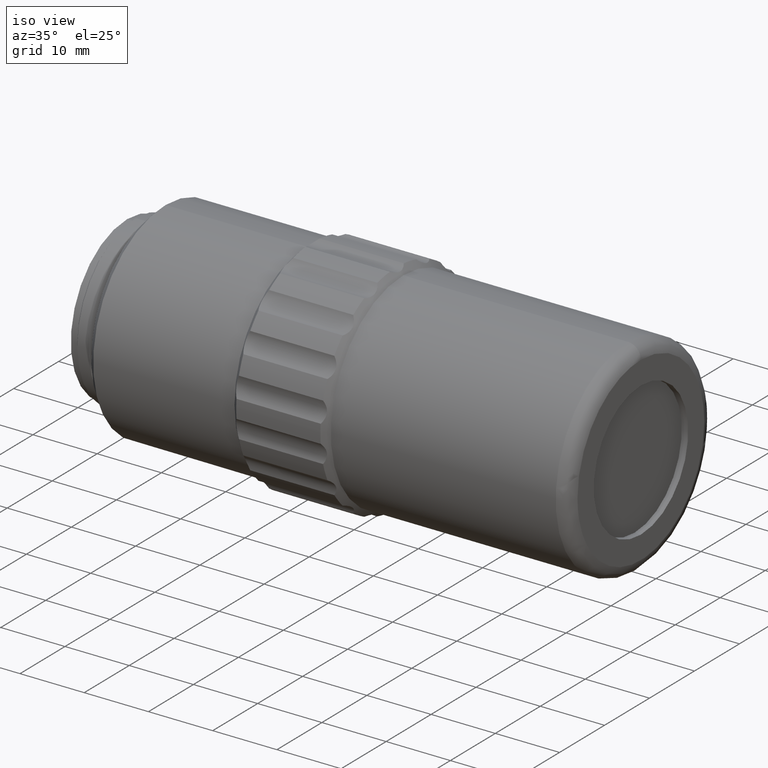
[diagram: clean part render]
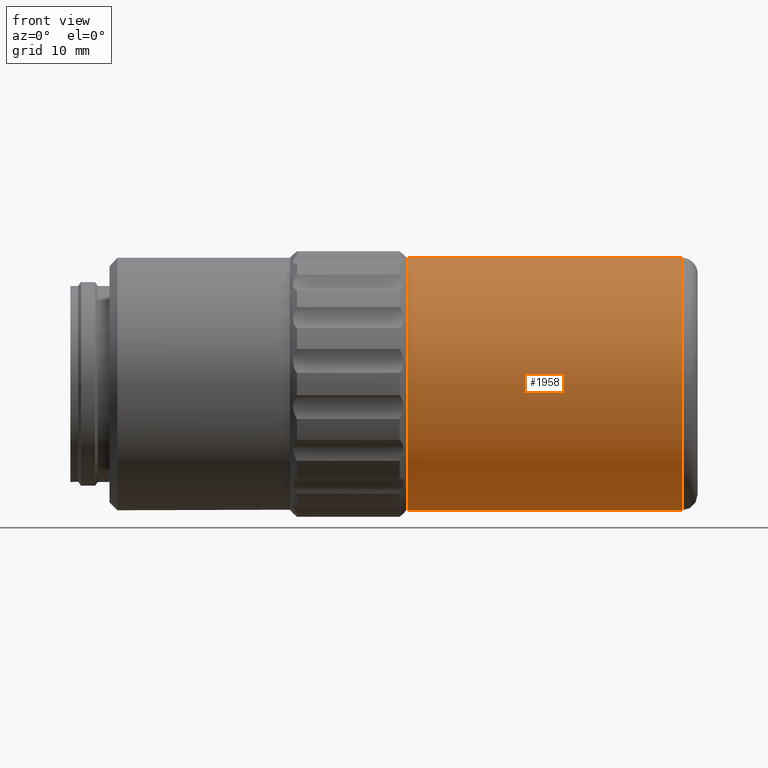
[diagram: tour spotlight — one face highlighted and labeled with its STEP entity id]
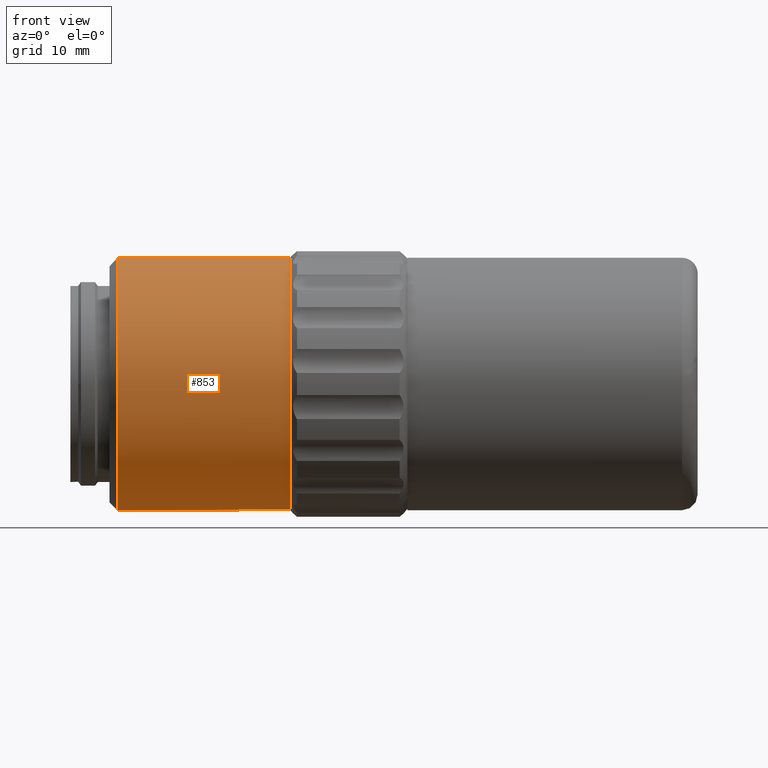
[diagram: tour spotlight — one face highlighted and labeled with its STEP entity id]
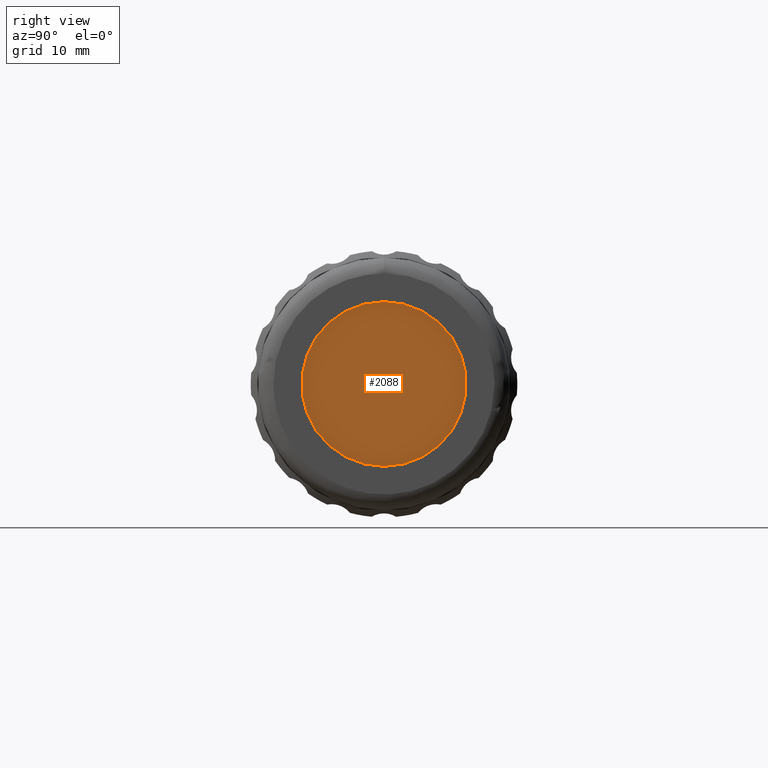
[diagram: tour spotlight — one face highlighted and labeled with its STEP entity id]
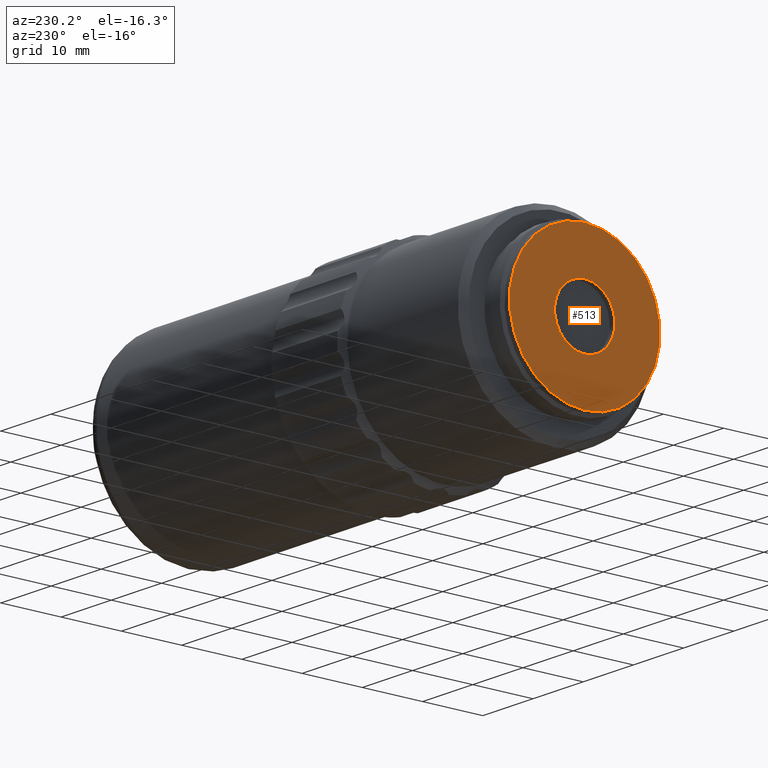
[diagram: tour spotlight — one face highlighted and labeled with its STEP entity id]
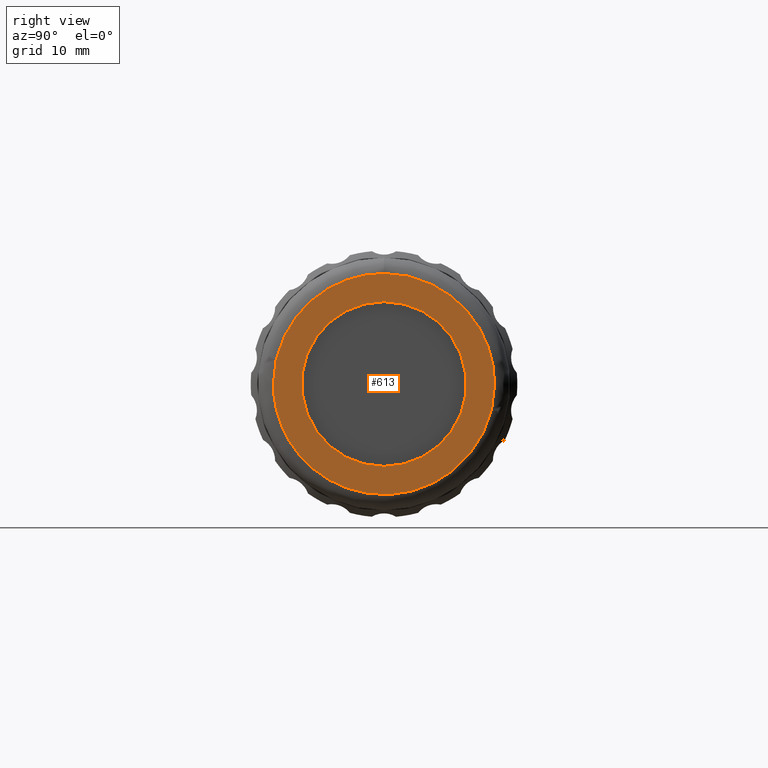
[diagram: tour spotlight — one face highlighted and labeled with its STEP entity id]
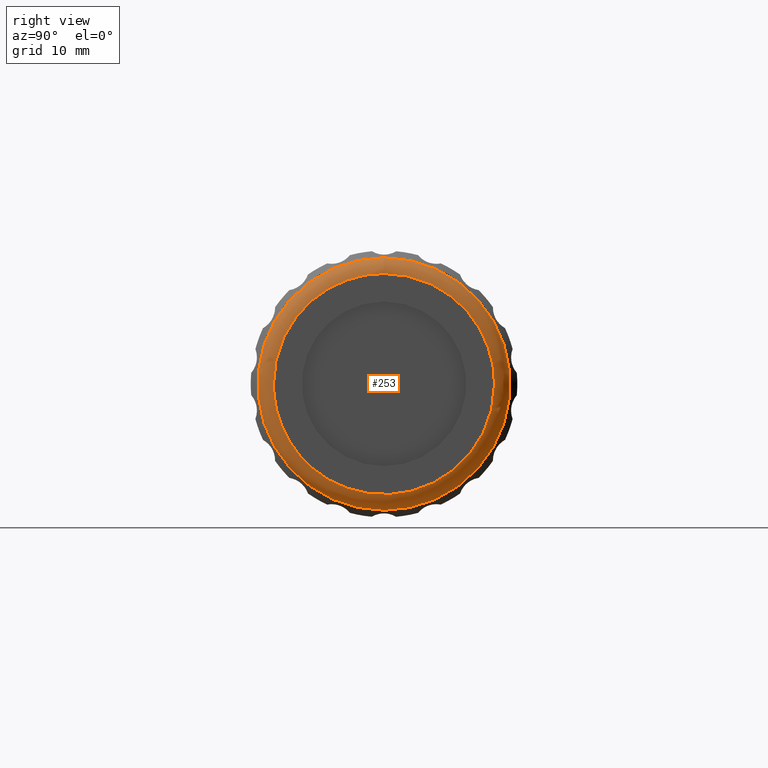
[diagram: tour spotlight — one face highlighted and labeled with its STEP entity id]
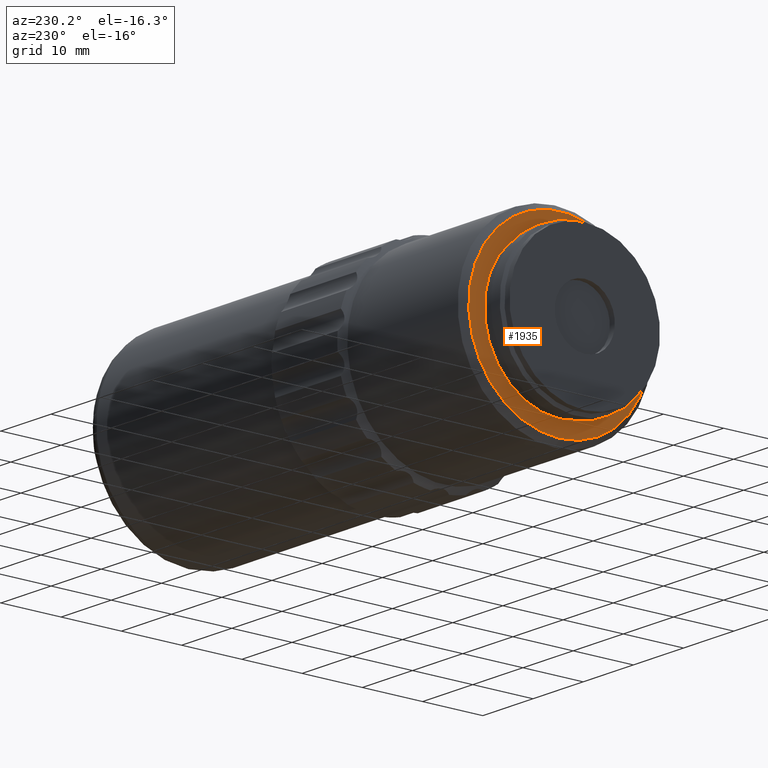
[diagram: tour spotlight — one face highlighted and labeled with its STEP entity id]
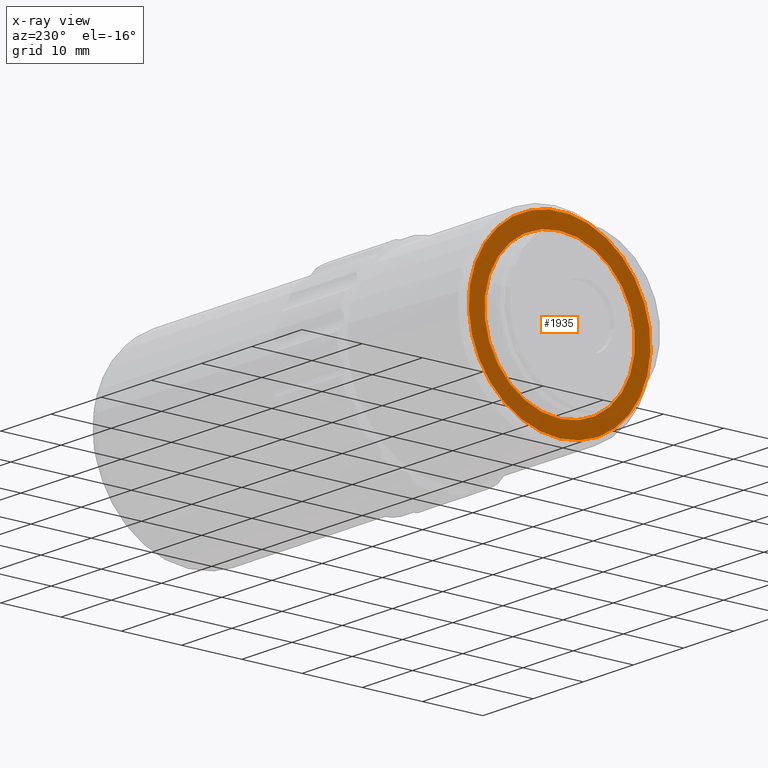
[diagram: x-ray of the same camera — body ghosted, this tour face saturated]
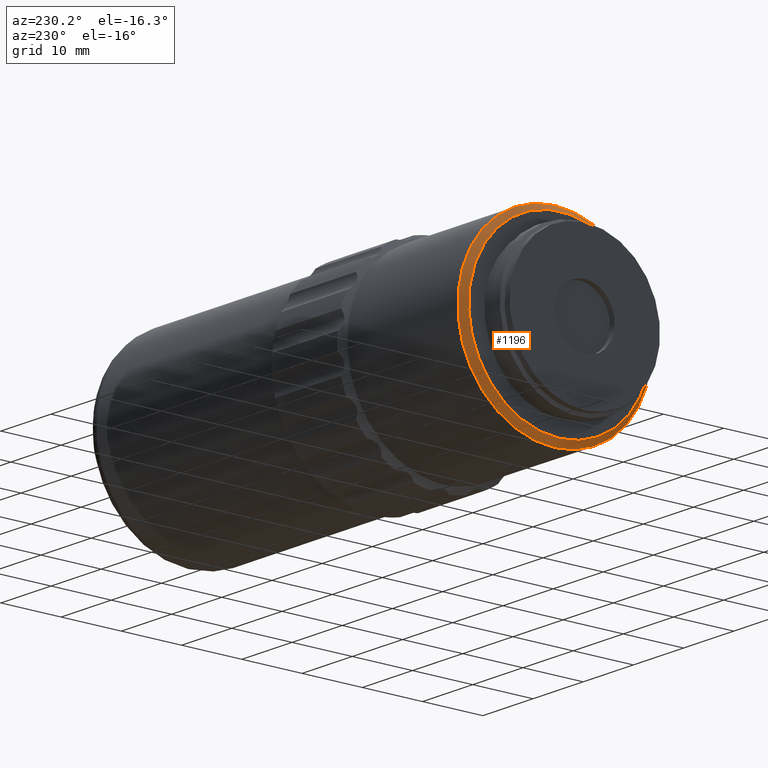
[diagram: tour spotlight — one face highlighted and labeled with its STEP entity id]
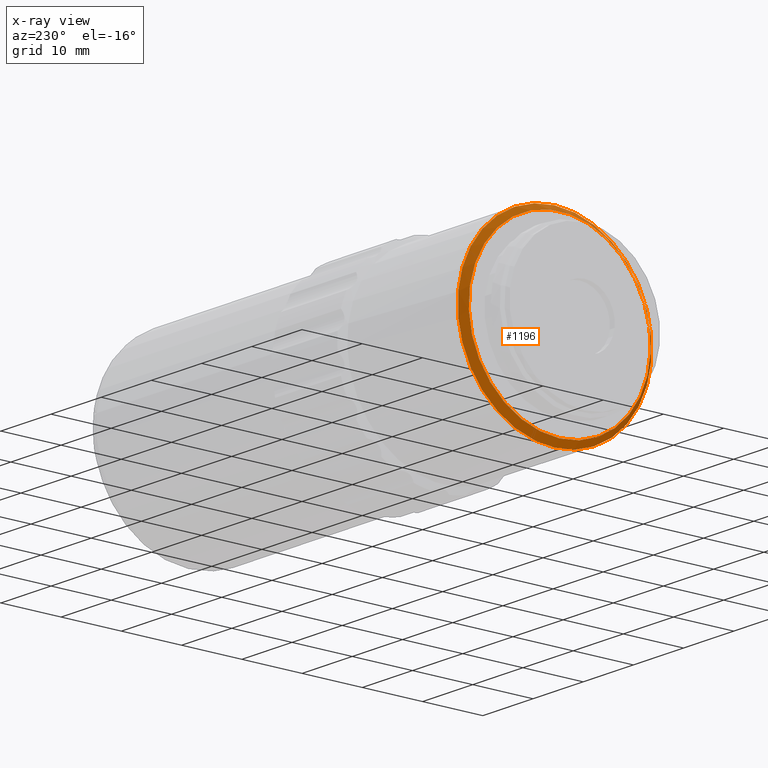
[diagram: x-ray of the same camera — body ghosted, this tour face saturated]
A machine part: a face-by-face anatomy tour. The part has 55 B-rep faces; the first image is the clean iso view, then the 8 largest visible faces are spotlighted one at a time (largest first), each with its STEP entity span.

Face 1 — front view, entity #1958. In plain terms, the highlighted cylindrical surface (bore or boss wall) has radius 16.1 mm, axis along (-1, 0, 0).
Definition (entity closure, byte-faithful):
#20 = ORIENTED_EDGE ( 'NONE', *, *, #371, .T. ) ;
#49 = DIRECTION ( 'NONE',  ( 0.000000000000000000, 0.000000000000000000, 1.000000000000000000 ) ) ;
#54 = CIRCLE ( 'NONE', #1962, 16.10000000000000142 ) ;
#118 = CIRCLE ( 'NONE', #978, 16.10000000000000142 ) ;
#371 = EDGE_CURVE ( 'NONE', #1034, #1034, #54, .T. ) ;
#381 = DIRECTION ( 'NONE',  ( 1.000000000000000000, -0.000000000000000000, -0.000000000000000000 ) ) ;
#407 = EDGE_CURVE ( 'NONE', #2024, #2024, #118, .T. ) ;
#451 = CYLINDRICAL_SURFACE ( 'NONE', #1861, 16.10000000000000142 ) ;
#462 = EDGE_LOOP ( 'NONE', ( #20 ) ) ;
#515 = ORIENTED_EDGE ( 'NONE', *, *, #407, .T. ) ;
#534 = DIRECTION ( 'NONE',  ( 0.000000000000000000, 0.000000000000000000, 1.000000000000000000 ) ) ;
#541 = DIRECTION ( 'NONE',  ( 0.000000000000000000, 0.000000000000000000, 1.000000000000000000 ) ) ;
#759 = CARTESIAN_POINT ( 'NONE',  ( 44.14685803487879667, 46.02096199999999726, 0.000000000000000000 ) ) ;
#852 = CARTESIAN_POINT ( 'NONE',  ( 33.44685803487879383, 46.02096199999999726, 0.000000000000000000 ) ) ;
#894 = CARTESIAN_POINT ( 'NONE',  ( 68.44685803487878673, 46.02096199999999726, 16.10000000000000142 ) ) ;
#927 = EDGE_LOOP ( 'NONE', ( #515 ) ) ;
#978 = AXIS2_PLACEMENT_3D ( 'NONE', #1990, #1174, #534 ) ;
#1034 = VERTEX_POINT ( 'NONE', #1525 ) ;
#1174 = DIRECTION ( 'NONE',  ( -1.000000000000000000, 0.000000000000000000, 0.000000000000000000 ) ) ;
#1525 = CARTESIAN_POINT ( 'NONE',  ( 33.44685803487879383, 46.02096199999999726, 16.10000000000000142 ) ) ;
#1749 = DIRECTION ( 'NONE',  ( -1.000000000000000000, 0.000000000000000000, 0.000000000000000000 ) ) ;
#1861 = AXIS2_PLACEMENT_3D ( 'NONE', #759, #1749, #541 ) ;
#1910 = FACE_OUTER_BOUND ( 'NONE', #462, .T. ) ;
#1958 = ADVANCED_FACE ( 'NONE', ( #2100, #1910 ), #451, .T. ) ;
#1962 = AXIS2_PLACEMENT_3D ( 'NONE', #852, #381, #49 ) ;
#1990 = CARTESIAN_POINT ( 'NONE',  ( 68.44685803487878673, 46.02096199999999726, 0.000000000000000000 ) ) ;
#2024 = VERTEX_POINT ( 'NONE', #894 ) ;
#2100 = FACE_OUTER_BOUND ( 'NONE', #927, .T. ) ;

Face 2 — front view, entity #853. In plain terms, the highlighted cylindrical surface (bore or boss wall) has radius 16.1 mm, axis along (-1, 0, 0).
Definition (entity closure, byte-faithful):
#33 = CARTESIAN_POINT ( 'NONE',  ( 18.44685803487879738, 46.02096199999999726, 0.000000000000000000 ) ) ;
#103 = AXIS2_PLACEMENT_3D ( 'NONE', #816, #1606, #662 ) ;
#186 = DIRECTION ( 'NONE',  ( 1.000000000000000000, 0.000000000000000000, 0.000000000000000000 ) ) ;
#306 = EDGE_LOOP ( 'NONE', ( #627 ) ) ;
#363 = CIRCLE ( 'NONE', #2093, 16.10000000000000142 ) ;
#537 = EDGE_LOOP ( 'NONE', ( #1096 ) ) ;
#598 = AXIS2_PLACEMENT_3D ( 'NONE', #1936, #1913, #1085 ) ;
#627 = ORIENTED_EDGE ( 'NONE', *, *, #1579, .T. ) ;
#629 = FACE_OUTER_BOUND ( 'NONE', #537, .T. ) ;
#662 = DIRECTION ( 'NONE',  ( 0.000000000000000000, 0.000000000000000000, 1.000000000000000000 ) ) ;
#816 = CARTESIAN_POINT ( 'NONE',  ( 6.946858034878798271, 46.02096199999999726, 0.000000000000000000 ) ) ;
#853 = ADVANCED_FACE ( 'NONE', ( #1121, #629 ), #988, .T. ) ;
#988 = CYLINDRICAL_SURFACE ( 'NONE', #103, 16.10000000000000142 ) ;
#1085 = DIRECTION ( 'NONE',  ( 0.000000000000000000, 0.000000000000000000, 1.000000000000000000 ) ) ;
#1096 = ORIENTED_EDGE ( 'NONE', *, *, #2005, .F. ) ;
#1121 = FACE_OUTER_BOUND ( 'NONE', #306, .T. ) ;
#1202 = CARTESIAN_POINT ( 'NONE',  ( 18.44685803487879738, 29.92096199999999584, 0.000000000000000000 ) ) ;
#1226 = VERTEX_POINT ( 'NONE', #1202 ) ;
#1363 = VERTEX_POINT ( 'NONE', #1689 ) ;
#1411 = CIRCLE ( 'NONE', #598, 16.10000000000000142 ) ;
#1579 = EDGE_CURVE ( 'NONE', #1363, #1363, #1411, .T. ) ;
#1606 = DIRECTION ( 'NONE',  ( -1.000000000000000000, 0.000000000000000000, 0.000000000000000000 ) ) ;
#1689 = CARTESIAN_POINT ( 'NONE',  ( -3.553141965121202617, 46.02096199999999726, 16.10000000000000142 ) ) ;
#1913 = DIRECTION ( 'NONE',  ( 1.000000000000000000, -0.000000000000000000, -0.000000000000000000 ) ) ;
#1936 = CARTESIAN_POINT ( 'NONE',  ( -3.553141965121202617, 46.02096199999999726, 0.000000000000000000 ) ) ;
#2005 = EDGE_CURVE ( 'NONE', #1226, #1226, #363, .T. ) ;
#2093 = AXIS2_PLACEMENT_3D ( 'NONE', #33, #186, #2109 ) ;
#2109 = DIRECTION ( 'NONE',  ( 0.000000000000000000, -1.000000000000000000, 0.000000000000000000 ) ) ;

Face 3 — right view, entity #2088. In plain terms, the highlighted planar face has unit normal (1, 0, 0).
Definition (entity closure, byte-faithful):
#351 = AXIS2_PLACEMENT_3D ( 'NONE', #516, #2015, #1010 ) ;
#396 = DIRECTION ( 'NONE',  ( 1.000000000000000000, 0.000000000000000000, 0.000000000000000000 ) ) ;
#516 = CARTESIAN_POINT ( 'NONE',  ( 69.44685803487880094, 46.02096199999999726, 4.350675744370770171E-31 ) ) ;
#711 = VERTEX_POINT ( 'NONE', #1210 ) ;
#746 = DIRECTION ( 'NONE',  ( 0.000000000000000000, 0.000000000000000000, -1.000000000000000000 ) ) ;
#753 = CIRCLE ( 'NONE', #351, 10.50000000000000000 ) ;
#859 = AXIS2_PLACEMENT_3D ( 'NONE', #1513, #396, #746 ) ;
#942 = EDGE_CURVE ( 'NONE', #711, #711, #753, .T. ) ;
#959 = ORIENTED_EDGE ( 'NONE', *, *, #942, .T. ) ;
#1010 = DIRECTION ( 'NONE',  ( 0.000000000000000000, 0.000000000000000000, -1.000000000000000000 ) ) ;
#1131 = EDGE_LOOP ( 'NONE', ( #959 ) ) ;
#1210 = CARTESIAN_POINT ( 'NONE',  ( 69.44685803487880094, 46.02096199999999726, -10.50000000000000000 ) ) ;
#1380 = FACE_OUTER_BOUND ( 'NONE', #1131, .T. ) ;
#1513 = CARTESIAN_POINT ( 'NONE',  ( 69.44685803487880094, 46.02096199999999726, 0.000000000000000000 ) ) ;
#2015 = DIRECTION ( 'NONE',  ( 1.000000000000000000, 0.000000000000000000, 0.000000000000000000 ) ) ;
#2041 = PLANE ( 'NONE',  #859 ) ;
#2088 = ADVANCED_FACE ( 'NONE', ( #1380 ), #2041, .T. ) ;

Face 4 — auxiliary view, entity #513. In plain terms, the highlighted planar face has unit normal (-1, 0, 0).
Definition (entity closure, byte-faithful):
#161 = AXIS2_PLACEMENT_3D ( 'NONE', #1134, #1586, #1457 ) ;
#165 = DIRECTION ( 'NONE',  ( 0.000000000000000000, 0.000000000000000000, 1.000000000000000000 ) ) ;
#238 = CIRCLE ( 'NONE', #612, 12.50000000000000000 ) ;
#320 = DIRECTION ( 'NONE',  ( -1.000000000000000000, 0.000000000000000000, 0.000000000000000000 ) ) ;
#483 = EDGE_LOOP ( 'NONE', ( #615 ) ) ;
#513 = ADVANCED_FACE ( 'NONE', ( #1305, #993 ), #1483, .T. ) ;
#568 = DIRECTION ( 'NONE',  ( 0.000000000000000000, 0.000000000000000000, 1.000000000000000000 ) ) ;
#569 = VERTEX_POINT ( 'NONE', #1219 ) ;
#576 = VERTEX_POINT ( 'NONE', #1678 ) ;
#612 = AXIS2_PLACEMENT_3D ( 'NONE', #1533, #1708, #568 ) ;
#615 = ORIENTED_EDGE ( 'NONE', *, *, #1138, .T. ) ;
#706 = AXIS2_PLACEMENT_3D ( 'NONE', #1026, #320, #165 ) ;
#880 = ORIENTED_EDGE ( 'NONE', *, *, #1378, .F. ) ;
#993 = FACE_OUTER_BOUND ( 'NONE', #1166, .T. ) ;
#1026 = CARTESIAN_POINT ( 'NONE',  ( -9.553141965121202617, 57.87096199999999868, 0.000000000000000000 ) ) ;
#1134 = CARTESIAN_POINT ( 'NONE',  ( -9.553141965121202617, 46.02096199999999726, 0.000000000000000000 ) ) ;
#1138 = EDGE_CURVE ( 'NONE', #569, #569, #1248, .T. ) ;
#1166 = EDGE_LOOP ( 'NONE', ( #880 ) ) ;
#1219 = CARTESIAN_POINT ( 'NONE',  ( -9.553141965121202617, 46.02096199999999726, 5.000000000000000000 ) ) ;
#1248 = CIRCLE ( 'NONE', #161, 5.000000000000000000 ) ;
#1305 = FACE_BOUND ( 'NONE', #483, .T. ) ;
#1378 = EDGE_CURVE ( 'NONE', #576, #576, #238, .T. ) ;
#1457 = DIRECTION ( 'NONE',  ( 0.000000000000000000, 0.000000000000000000, 1.000000000000000000 ) ) ;
#1483 = PLANE ( 'NONE',  #706 ) ;
#1533 = CARTESIAN_POINT ( 'NONE',  ( -9.553141965121202617, 46.02096199999999726, 0.000000000000000000 ) ) ;
#1586 = DIRECTION ( 'NONE',  ( 1.000000000000000000, -0.000000000000000000, -0.000000000000000000 ) ) ;
#1678 = CARTESIAN_POINT ( 'NONE',  ( -9.553141965121202617, 46.02096199999999726, 12.50000000000000000 ) ) ;
#1708 = DIRECTION ( 'NONE',  ( 1.000000000000000000, -0.000000000000000000, -0.000000000000000000 ) ) ;

Face 5 — right view, entity #613. In plain terms, the highlighted planar face has unit normal (1, 0, 0).
Definition (entity closure, byte-faithful):
#60 = AXIS2_PLACEMENT_3D ( 'NONE', #1185, #1486, #1496 ) ;
#71 = CARTESIAN_POINT ( 'NONE',  ( 70.44685803487880094, 37.76137322946063790, 14.09999999999999964 ) ) ;
#94 = CARTESIAN_POINT ( 'NONE',  ( 70.44685803487880094, 31.92096199999999584, -1.036051192078660836E-15 ) ) ;
#105 = AXIS2_PLACEMENT_3D ( 'NONE', #1035, #390, #218 ) ;
#197 = CARTESIAN_POINT ( 'NONE',  ( 70.44685803487880094, 31.92096199999999584, -28.19999999999999929 ) ) ;
#218 = DIRECTION ( 'NONE',  ( 0.000000000000000000, 0.000000000000000000, -1.000000000000000000 ) ) ;
#228 = PLANE ( 'NONE',  #105 ) ;
#283 = ORIENTED_EDGE ( 'NONE', *, *, #1715, .F. ) ;
#327 = CIRCLE ( 'NONE', #60, 10.50000000000000000 ) ;
#390 = DIRECTION ( 'NONE',  ( 1.000000000000000000, 0.000000000000000000, 0.000000000000000000 ) ) ;
#497 = CARTESIAN_POINT ( 'NONE',  ( 70.44685803487880094, 31.92096199999999584, -1.036051192078660836E-15 ) ) ;
#524 = CARTESIAN_POINT ( 'NONE',  ( 70.44685803487880094, 31.92096199999999584, -1.036051192078660836E-15 ) ) ;
#530 = EDGE_CURVE ( 'NONE', #1745, #2099, #1918, .T. ) ;
#543 = EDGE_CURVE ( 'NONE', #1932, #1745, #1262, .T. ) ;
#571 = CARTESIAN_POINT ( 'NONE',  ( 70.44685803487880094, 60.12096199999999868, 8.259588770539359359 ) ) ;
#613 = ADVANCED_FACE ( 'NONE', ( #1382, #2027 ), #228, .T. ) ;
#640 = ORIENTED_EDGE ( 'NONE', *, *, #543, .F. ) ;
#722 = CARTESIAN_POINT ( 'NONE',  ( 70.44685803487880094, 54.28055077053935662, 14.09999999999999964 ) ) ;
#857 = ORIENTED_EDGE ( 'NONE', *, *, #530, .F. ) ;
#893 =( BOUNDED_CURVE ( )  B_SPLINE_CURVE ( 3, ( #524, #1017, #71, #1205 ),
 .UNSPECIFIED., .F., .T. ) 
 B_SPLINE_CURVE_WITH_KNOTS ( ( 4, 4 ),
 ( 0.000000000000000000, 1.000000000000000000 ),
 .UNSPECIFIED. ) 
 CURVE ( )  GEOMETRIC_REPRESENTATION_ITEM ( )  RATIONAL_B_SPLINE_CURVE ( ( 1.000000000000000000, 0.8047378541243649375, 0.8047378541243649375, 1.000000000000000000 ) ) 
 REPRESENTATION_ITEM ( '' )  );
#1015 = CARTESIAN_POINT ( 'NONE',  ( 70.44685803487880094, 46.02096199999999726, 14.10000000000000142 ) ) ;
#1017 = CARTESIAN_POINT ( 'NONE',  ( 70.44685803487880094, 31.92096199999999584, 8.259588770539357583 ) ) ;
#1035 = CARTESIAN_POINT ( 'NONE',  ( 70.44685803487880094, 46.02096199999999726, 14.44999999999999929 ) ) ;
#1102 = CARTESIAN_POINT ( 'NONE',  ( 70.44685803487880094, 46.02096199999999726, 14.10000000000000142 ) ) ;
#1171 = EDGE_LOOP ( 'NONE', ( #1604 ) ) ;
#1185 = CARTESIAN_POINT ( 'NONE',  ( 70.44685803487880094, 46.02096199999999726, 4.350675744370770171E-31 ) ) ;
#1194 = CARTESIAN_POINT ( 'NONE',  ( 70.44685803487880094, 60.12096199999999868, 0.000000000000000000 ) ) ;
#1205 = CARTESIAN_POINT ( 'NONE',  ( 70.44685803487880094, 46.02096199999999726, 14.10000000000000142 ) ) ;
#1262 =( BOUNDED_CURVE ( )  B_SPLINE_CURVE ( 3, ( #1015, #722, #571, #1194 ),
 .UNSPECIFIED., .F., .T. ) 
 B_SPLINE_CURVE_WITH_KNOTS ( ( 4, 4 ),
 ( 0.000000000000000000, 1.000000000000000000 ),
 .UNSPECIFIED. ) 
 CURVE ( )  GEOMETRIC_REPRESENTATION_ITEM ( )  RATIONAL_B_SPLINE_CURVE ( ( 1.000000000000000000, 0.8047378541243649375, 0.8047378541243649375, 1.000000000000000000 ) ) 
 REPRESENTATION_ITEM ( '' )  );
#1382 = FACE_BOUND ( 'NONE', #1171, .T. ) ;
#1486 = DIRECTION ( 'NONE',  ( -1.000000000000000000, -0.000000000000000000, -0.000000000000000000 ) ) ;
#1496 = DIRECTION ( 'NONE',  ( 0.000000000000000000, 0.000000000000000000, -1.000000000000000000 ) ) ;
#1505 = CARTESIAN_POINT ( 'NONE',  ( 70.44685803487880094, 60.12096199999999868, 0.000000000000000000 ) ) ;
#1543 = CARTESIAN_POINT ( 'NONE',  ( 70.44685803487880094, 46.02096199999999726, -10.50000000000000000 ) ) ;
#1547 = CARTESIAN_POINT ( 'NONE',  ( 70.44685803487880094, 60.12096199999999868, 0.000000000000000000 ) ) ;
#1604 = ORIENTED_EDGE ( 'NONE', *, *, #1680, .T. ) ;
#1650 = CARTESIAN_POINT ( 'NONE',  ( 70.44685803487880094, 60.12096200000000579, -28.19999999999999929 ) ) ;
#1680 = EDGE_CURVE ( 'NONE', #2009, #2009, #327, .T. ) ;
#1715 = EDGE_CURVE ( 'NONE', #2099, #1932, #893, .T. ) ;
#1745 = VERTEX_POINT ( 'NONE', #1547 ) ;
#1812 = EDGE_LOOP ( 'NONE', ( #857, #640, #283 ) ) ;
#1918 =( BOUNDED_CURVE ( )  B_SPLINE_CURVE ( 3, ( #1505, #1650, #197, #497 ),
 .UNSPECIFIED., .F., .F. ) 
 B_SPLINE_CURVE_WITH_KNOTS ( ( 4, 4 ),
 ( 0.000000000000000000, 1.000000000000000000 ),
 .UNSPECIFIED. ) 
 CURVE ( )  GEOMETRIC_REPRESENTATION_ITEM ( )  RATIONAL_B_SPLINE_CURVE ( ( 1.000000000000000000, 0.3333333333333333703, 0.3333333333333333703, 1.000000000000000000 ) ) 
 REPRESENTATION_ITEM ( '' )  );
#1932 = VERTEX_POINT ( 'NONE', #1102 ) ;
#2009 = VERTEX_POINT ( 'NONE', #1543 ) ;
#2027 = FACE_OUTER_BOUND ( 'NONE', #1812, .T. ) ;
#2099 = VERTEX_POINT ( 'NONE', #94 ) ;

Face 6 — right view, entity #253. In plain terms, the highlighted face is a freeform B-spline surface patch.
Definition (entity closure, byte-faithful):
#2 = CARTESIAN_POINT ( 'NONE',  ( 69.61843091013260221, 29.92096199999999939, 0.000000000000000000 ) ) ;
#71 = CARTESIAN_POINT ( 'NONE',  ( 70.44685803487880094, 37.76137322946063790, 14.09999999999999964 ) ) ;
#94 = CARTESIAN_POINT ( 'NONE',  ( 70.44685803487880094, 31.92096199999999584, -1.036051192078660836E-15 ) ) ;
#118 = CIRCLE ( 'NONE', #978, 16.10000000000000142 ) ;
#130 = CARTESIAN_POINT ( 'NONE',  ( 68.44685803487880094, 29.92096199999999584, -32.20000000000000284 ) ) ;
#142 = CARTESIAN_POINT ( 'NONE',  ( 70.44685803487880094, 30.74938912474618391, 0.000000000000000000 ) ) ;
#182 = EDGE_LOOP ( 'NONE', ( #1275, #815, #1419 ) ) ;
#197 = CARTESIAN_POINT ( 'NONE',  ( 70.44685803487880094, 31.92096199999999584, -28.19999999999999929 ) ) ;
#253 = ADVANCED_FACE ( 'NONE', ( #1406, #600 ), #683, .T. ) ;
#300 = CARTESIAN_POINT ( 'NONE',  ( 69.61843091013260221, 29.92096199999999584, 32.20000000000000284 ) ) ;
#310 = CARTESIAN_POINT ( 'NONE',  ( 70.44685803487880094, 60.12096199999999868, -28.20000000000000284 ) ) ;
#321 = CARTESIAN_POINT ( 'NONE',  ( 70.44685803487880094, 31.92096199999999229, -28.20000000000000284 ) ) ;
#407 = EDGE_CURVE ( 'NONE', #2024, #2024, #118, .T. ) ;
#464 = CARTESIAN_POINT ( 'NONE',  ( 68.44685803487878673, 62.12096199999999868, 0.000000000000000000 ) ) ;
#487 = CARTESIAN_POINT ( 'NONE',  ( 70.44685803487880094, 31.92096199999999229, 28.20000000000000284 ) ) ;
#497 = CARTESIAN_POINT ( 'NONE',  ( 70.44685803487880094, 31.92096199999999584, -1.036051192078660836E-15 ) ) ;
#524 = CARTESIAN_POINT ( 'NONE',  ( 70.44685803487880094, 31.92096199999999584, -1.036051192078660836E-15 ) ) ;
#530 = EDGE_CURVE ( 'NONE', #1745, #2099, #1918, .T. ) ;
#534 = DIRECTION ( 'NONE',  ( 0.000000000000000000, 0.000000000000000000, 1.000000000000000000 ) ) ;
#543 = EDGE_CURVE ( 'NONE', #1932, #1745, #1262, .T. ) ;
#571 = CARTESIAN_POINT ( 'NONE',  ( 70.44685803487880094, 60.12096199999999868, 8.259588770539359359 ) ) ;
#600 = FACE_OUTER_BOUND ( 'NONE', #798, .T. ) ;
#611 = CARTESIAN_POINT ( 'NONE',  ( 68.44685803487880094, 62.12096200000000579, -32.20000000000000284 ) ) ;
#623 = CARTESIAN_POINT ( 'NONE',  ( 68.44685803487880094, 29.92096199999999584, 32.20000000000000284 ) ) ;
#634 = CARTESIAN_POINT ( 'NONE',  ( 70.44685803487880094, 61.29253487525379995, 0.000000000000000000 ) ) ;
#658 = CARTESIAN_POINT ( 'NONE',  ( 70.44685803487880094, 60.12096199999999868, 0.000000000000000000 ) ) ;
#680 = CARTESIAN_POINT ( 'NONE',  ( 70.44685803487880094, 30.74938912474619102, -30.54314575050762315 ) ) ;
#683 =( BOUNDED_SURFACE ( )  B_SPLINE_SURFACE ( 3, 3, ( 
 ( #1094, #611, #130, #783, #623, #1924, #464 ),
 ( #1114, #1809, #1461, #2, #300, #995, #2089 ),
 ( #634, #1982, #680, #142, #981, #1641, #842 ),
 ( #658, #310, #321, #1283, #487, #1612, #1629 ) ),
 .UNSPECIFIED., .F., .T., .T. ) 
 B_SPLINE_SURFACE_WITH_KNOTS ( ( 4, 4 ),
 ( 4, 3, 4 ),
 ( 0.000000000000000000, 1.000000000000000000 ),
 ( 0.000000000000000000, 0.5000000000000000000, 1.000000000000000000 ),
 .UNSPECIFIED. ) 
 GEOMETRIC_REPRESENTATION_ITEM ( )  RATIONAL_B_SPLINE_SURFACE ( (
 ( 1.000000000000000000, 0.3333333333333333148, 0.3333333333333333148, 1.000000000000000000, 0.3333333333333333148, 0.3333333333333333148, 1.000000000000000000),
 ( 0.8047378541243649375, 0.2682459513747882940, 0.2682459513747882940, 0.8047378541243649375, 0.2682459513747882940, 0.2682459513747882940, 0.8047378541243649375),
 ( 0.8047378541243649375, 0.2682459513747882940, 0.2682459513747882940, 0.8047378541243649375, 0.2682459513747882940, 0.2682459513747882940, 0.8047378541243649375),
 ( 1.000000000000000000, 0.3333333333333333148, 0.3333333333333333148, 1.000000000000000000, 0.3333333333333333148, 0.3333333333333333148, 1.000000000000000000) ) ) 
 REPRESENTATION_ITEM ( '' )  SURFACE ( )  );
#722 = CARTESIAN_POINT ( 'NONE',  ( 70.44685803487880094, 54.28055077053935662, 14.09999999999999964 ) ) ;
#783 = CARTESIAN_POINT ( 'NONE',  ( 68.44685803487878673, 29.92096199999999584, 0.000000000000000000 ) ) ;
#798 = EDGE_LOOP ( 'NONE', ( #1811 ) ) ;
#815 = ORIENTED_EDGE ( 'NONE', *, *, #530, .T. ) ;
#842 = CARTESIAN_POINT ( 'NONE',  ( 70.44685803487880094, 61.29253487525379995, 0.000000000000000000 ) ) ;
#893 =( BOUNDED_CURVE ( )  B_SPLINE_CURVE ( 3, ( #524, #1017, #71, #1205 ),
 .UNSPECIFIED., .F., .T. ) 
 B_SPLINE_CURVE_WITH_KNOTS ( ( 4, 4 ),
 ( 0.000000000000000000, 1.000000000000000000 ),
 .UNSPECIFIED. ) 
 CURVE ( )  GEOMETRIC_REPRESENTATION_ITEM ( )  RATIONAL_B_SPLINE_CURVE ( ( 1.000000000000000000, 0.8047378541243649375, 0.8047378541243649375, 1.000000000000000000 ) ) 
 REPRESENTATION_ITEM ( '' )  );
#894 = CARTESIAN_POINT ( 'NONE',  ( 68.44685803487878673, 46.02096199999999726, 16.10000000000000142 ) ) ;
#978 = AXIS2_PLACEMENT_3D ( 'NONE', #1990, #1174, #534 ) ;
#981 = CARTESIAN_POINT ( 'NONE',  ( 70.44685803487880094, 30.74938912474618391, 30.54314575050763025 ) ) ;
#995 = CARTESIAN_POINT ( 'NONE',  ( 69.61843091013260221, 62.12096199999999868, 32.20000000000000284 ) ) ;
#1015 = CARTESIAN_POINT ( 'NONE',  ( 70.44685803487880094, 46.02096199999999726, 14.10000000000000142 ) ) ;
#1017 = CARTESIAN_POINT ( 'NONE',  ( 70.44685803487880094, 31.92096199999999584, 8.259588770539357583 ) ) ;
#1094 = CARTESIAN_POINT ( 'NONE',  ( 68.44685803487878673, 62.12096199999999868, 0.000000000000000000 ) ) ;
#1102 = CARTESIAN_POINT ( 'NONE',  ( 70.44685803487880094, 46.02096199999999726, 14.10000000000000142 ) ) ;
#1114 = CARTESIAN_POINT ( 'NONE',  ( 69.61843091013260221, 62.12096199999999868, 0.000000000000000000 ) ) ;
#1174 = DIRECTION ( 'NONE',  ( -1.000000000000000000, 0.000000000000000000, 0.000000000000000000 ) ) ;
#1194 = CARTESIAN_POINT ( 'NONE',  ( 70.44685803487880094, 60.12096199999999868, 0.000000000000000000 ) ) ;
#1205 = CARTESIAN_POINT ( 'NONE',  ( 70.44685803487880094, 46.02096199999999726, 14.10000000000000142 ) ) ;
#1262 =( BOUNDED_CURVE ( )  B_SPLINE_CURVE ( 3, ( #1015, #722, #571, #1194 ),
 .UNSPECIFIED., .F., .T. ) 
 B_SPLINE_CURVE_WITH_KNOTS ( ( 4, 4 ),
 ( 0.000000000000000000, 1.000000000000000000 ),
 .UNSPECIFIED. ) 
 CURVE ( )  GEOMETRIC_REPRESENTATION_ITEM ( )  RATIONAL_B_SPLINE_CURVE ( ( 1.000000000000000000, 0.8047378541243649375, 0.8047378541243649375, 1.000000000000000000 ) ) 
 REPRESENTATION_ITEM ( '' )  );
#1275 = ORIENTED_EDGE ( 'NONE', *, *, #543, .T. ) ;
#1283 = CARTESIAN_POINT ( 'NONE',  ( 70.44685803487880094, 31.92096199999999584, 0.000000000000000000 ) ) ;
#1406 = FACE_OUTER_BOUND ( 'NONE', #182, .T. ) ;
#1419 = ORIENTED_EDGE ( 'NONE', *, *, #1715, .T. ) ;
#1461 = CARTESIAN_POINT ( 'NONE',  ( 69.61843091013260221, 29.92096199999999584, -32.20000000000000284 ) ) ;
#1505 = CARTESIAN_POINT ( 'NONE',  ( 70.44685803487880094, 60.12096199999999868, 0.000000000000000000 ) ) ;
#1547 = CARTESIAN_POINT ( 'NONE',  ( 70.44685803487880094, 60.12096199999999868, 0.000000000000000000 ) ) ;
#1612 = CARTESIAN_POINT ( 'NONE',  ( 70.44685803487880094, 60.12096199999999868, 28.20000000000000284 ) ) ;
#1629 = CARTESIAN_POINT ( 'NONE',  ( 70.44685803487880094, 60.12096199999999868, 0.000000000000000000 ) ) ;
#1641 = CARTESIAN_POINT ( 'NONE',  ( 70.44685803487880094, 61.29253487525381416, 30.54314575050762315 ) ) ;
#1650 = CARTESIAN_POINT ( 'NONE',  ( 70.44685803487880094, 60.12096200000000579, -28.19999999999999929 ) ) ;
#1715 = EDGE_CURVE ( 'NONE', #2099, #1932, #893, .T. ) ;
#1745 = VERTEX_POINT ( 'NONE', #1547 ) ;
#1809 = CARTESIAN_POINT ( 'NONE',  ( 69.61843091013260221, 62.12096199999999868, -32.20000000000000284 ) ) ;
#1811 = ORIENTED_EDGE ( 'NONE', *, *, #407, .F. ) ;
#1918 =( BOUNDED_CURVE ( )  B_SPLINE_CURVE ( 3, ( #1505, #1650, #197, #497 ),
 .UNSPECIFIED., .F., .F. ) 
 B_SPLINE_CURVE_WITH_KNOTS ( ( 4, 4 ),
 ( 0.000000000000000000, 1.000000000000000000 ),
 .UNSPECIFIED. ) 
 CURVE ( )  GEOMETRIC_REPRESENTATION_ITEM ( )  RATIONAL_B_SPLINE_CURVE ( ( 1.000000000000000000, 0.3333333333333333703, 0.3333333333333333703, 1.000000000000000000 ) ) 
 REPRESENTATION_ITEM ( '' )  );
#1924 = CARTESIAN_POINT ( 'NONE',  ( 68.44685803487880094, 62.12096200000000579, 32.20000000000000284 ) ) ;
#1932 = VERTEX_POINT ( 'NONE', #1102 ) ;
#1982 = CARTESIAN_POINT ( 'NONE',  ( 70.44685803487880094, 61.29253487525381416, -30.54314575050762315 ) ) ;
#1990 = CARTESIAN_POINT ( 'NONE',  ( 68.44685803487878673, 46.02096199999999726, 0.000000000000000000 ) ) ;
#2024 = VERTEX_POINT ( 'NONE', #894 ) ;
#2089 = CARTESIAN_POINT ( 'NONE',  ( 69.61843091013260221, 62.12096199999999868, 0.000000000000000000 ) ) ;
#2099 = VERTEX_POINT ( 'NONE', #94 ) ;

Face 7 — auxiliary view, entity #1935. An x-ray twin of the same camera follows (body ghosted, this face saturated) — the face is partly hidden behind the body. In plain terms, the highlighted planar face has unit normal (-1, 0, 0).
Definition (entity closure, byte-faithful):
#97 = EDGE_CURVE ( 'NONE', #1873, #1873, #1452, .T. ) ;
#279 = FACE_OUTER_BOUND ( 'NONE', #1675, .T. ) ;
#307 = DIRECTION ( 'NONE',  ( -1.000000000000000000, 0.000000000000000000, 0.000000000000000000 ) ) ;
#632 = DIRECTION ( 'NONE',  ( 0.000000000000000000, 0.000000000000000000, 1.000000000000000000 ) ) ;
#675 = EDGE_CURVE ( 'NONE', #1072, #1072, #867, .T. ) ;
#694 = DIRECTION ( 'NONE',  ( 0.000000000000000000, 0.000000000000000000, 1.000000000000000000 ) ) ;
#819 = AXIS2_PLACEMENT_3D ( 'NONE', #855, #1223, #694 ) ;
#855 = CARTESIAN_POINT ( 'NONE',  ( -4.553141965121201729, 46.02096199999999726, 0.000000000000000000 ) ) ;
#867 = CIRCLE ( 'NONE', #2044, 15.09999999999999964 ) ;
#934 = PLANE ( 'NONE',  #1696 ) ;
#1072 = VERTEX_POINT ( 'NONE', #1534 ) ;
#1223 = DIRECTION ( 'NONE',  ( 1.000000000000000000, -0.000000000000000000, -0.000000000000000000 ) ) ;
#1412 = CARTESIAN_POINT ( 'NONE',  ( -4.553141965121198176, 46.02096199999999726, 5.387339987505588212E-17 ) ) ;
#1444 = ORIENTED_EDGE ( 'NONE', *, *, #675, .F. ) ;
#1452 = CIRCLE ( 'NONE', #819, 12.50000000000000000 ) ;
#1534 = CARTESIAN_POINT ( 'NONE',  ( -4.553141965121199064, 46.02096199999999726, -15.09999999999999964 ) ) ;
#1675 = EDGE_LOOP ( 'NONE', ( #1444 ) ) ;
#1696 = AXIS2_PLACEMENT_3D ( 'NONE', #2087, #307, #632 ) ;
#1705 = EDGE_LOOP ( 'NONE', ( #1963 ) ) ;
#1718 = CARTESIAN_POINT ( 'NONE',  ( -4.553141965121201729, 46.02096199999999726, 12.50000000000000000 ) ) ;
#1768 = FACE_BOUND ( 'NONE', #1705, .T. ) ;
#1873 = VERTEX_POINT ( 'NONE', #1718 ) ;
#1907 = DIRECTION ( 'NONE',  ( -5.744117470121878474E-17, 0.000000000000000000, -1.000000000000000000 ) ) ;
#1935 = ADVANCED_FACE ( 'NONE', ( #1768, #279 ), #934, .T. ) ;
#1963 = ORIENTED_EDGE ( 'NONE', *, *, #97, .T. ) ;
#2044 = AXIS2_PLACEMENT_3D ( 'NONE', #1412, #2051, #1907 ) ;
#2051 = DIRECTION ( 'NONE',  ( 1.000000000000000000, 0.000000000000000000, -5.387339987505611015E-17 ) ) ;
#2087 = CARTESIAN_POINT ( 'NONE',  ( -4.553141965121201729, 60.32096200000000863, 0.000000000000000000 ) ) ;

Face 8 — auxiliary view, entity #1196. An x-ray twin of the same camera follows (body ghosted, this face saturated) — the face is partly hidden behind the body. In plain terms, the highlighted conical surface has half-angle 45 deg.
Definition (entity closure, byte-faithful):
#61 = CONICAL_SURFACE ( 'NONE', #1628, 16.10000000000000142, 0.7853981633974526089 ) ;
#344 = FACE_OUTER_BOUND ( 'NONE', #1978, .T. ) ;
#598 = AXIS2_PLACEMENT_3D ( 'NONE', #1936, #1913, #1085 ) ;
#630 = FACE_BOUND ( 'NONE', #986, .T. ) ;
#675 = EDGE_CURVE ( 'NONE', #1072, #1072, #867, .T. ) ;
#867 = CIRCLE ( 'NONE', #2044, 15.09999999999999964 ) ;
#986 = EDGE_LOOP ( 'NONE', ( #1159 ) ) ;
#1072 = VERTEX_POINT ( 'NONE', #1534 ) ;
#1085 = DIRECTION ( 'NONE',  ( 0.000000000000000000, 0.000000000000000000, 1.000000000000000000 ) ) ;
#1117 = ORIENTED_EDGE ( 'NONE', *, *, #1579, .F. ) ;
#1159 = ORIENTED_EDGE ( 'NONE', *, *, #675, .T. ) ;
#1196 = ADVANCED_FACE ( 'NONE', ( #344, #630 ), #61, .T. ) ;
#1280 = CARTESIAN_POINT ( 'NONE',  ( -3.553141965121202617, 46.02096199999999726, 0.000000000000000000 ) ) ;
#1363 = VERTEX_POINT ( 'NONE', #1689 ) ;
#1411 = CIRCLE ( 'NONE', #598, 16.10000000000000142 ) ;
#1412 = CARTESIAN_POINT ( 'NONE',  ( -4.553141965121198176, 46.02096199999999726, 5.387339987505588212E-17 ) ) ;
#1534 = CARTESIAN_POINT ( 'NONE',  ( -4.553141965121199064, 46.02096199999999726, -15.09999999999999964 ) ) ;
#1579 = EDGE_CURVE ( 'NONE', #1363, #1363, #1411, .T. ) ;
#1622 = DIRECTION ( 'NONE',  ( -5.387339987505611631E-17, 0.000000000000000000, -1.000000000000000000 ) ) ;
#1628 = AXIS2_PLACEMENT_3D ( 'NONE', #1280, #1931, #1622 ) ;
#1689 = CARTESIAN_POINT ( 'NONE',  ( -3.553141965121202617, 46.02096199999999726, 16.10000000000000142 ) ) ;
#1907 = DIRECTION ( 'NONE',  ( -5.744117470121878474E-17, 0.000000000000000000, -1.000000000000000000 ) ) ;
#1913 = DIRECTION ( 'NONE',  ( 1.000000000000000000, -0.000000000000000000, -0.000000000000000000 ) ) ;
#1931 = DIRECTION ( 'NONE',  ( 1.000000000000000000, 0.000000000000000000, -5.387339987505611015E-17 ) ) ;
#1936 = CARTESIAN_POINT ( 'NONE',  ( -3.553141965121202617, 46.02096199999999726, 0.000000000000000000 ) ) ;
#1978 = EDGE_LOOP ( 'NONE', ( #1117 ) ) ;
#2044 = AXIS2_PLACEMENT_3D ( 'NONE', #1412, #2051, #1907 ) ;
#2051 = DIRECTION ( 'NONE',  ( 1.000000000000000000, 0.000000000000000000, -5.387339987505611015E-17 ) ) ;